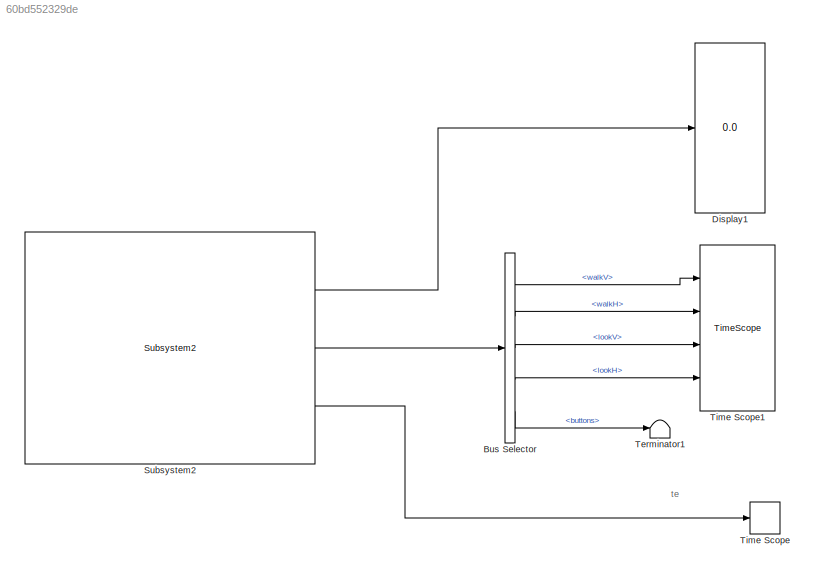
MODEL slx_60bd552329de
KIND model
BLOCK [BusSelector] Bus Selector
  OutputSignals = walkV,walkH,lookV,lookH,buttons
  Ports = [1, 5]
BLOCK [Display] Display1
  Decimation = 1
  Ports = [1]
BLOCK [Reference] Subsystem2  REF=BeagleBoneBlackCom/Subsystem2
  Ports = [0, 3]
  SourceBlock = BeagleBoneBlackCom/Subsystem2
  portNbr = Uart 2
BLOCK [Terminator] Terminator1
BLOCK [TimeScope] Time Scope
  DefaultConfigurationName = spbscopes.TimeScopeBlockCfg
  NumInputPorts = 1
  Ports = [1]
  ScopeSpecificationString = spbscopes.TimeScopeBlockCfg('CurrentConfiguration', extmgr.ConfigurationSet(extmgr.Configuration('Core','General UI',true),extmgr.Configuration('Core','Source UI',true),extmgr.Configuration('Sources','WiredSimulink',true,'DataLoggingVariableName','ScopeData2'),extmgr.Configuration('Visuals','Time Domain',true,'DisplayPropertyDefaults',struct('MinYLimReal','-1','MaxYLimReal','9','YLabelReal','Ampli...<+1498ch>
  UserDataPersistent = on
BLOCK [TimeScope] Time Scope1
  DefaultConfigurationName = spbscopes.TimeScopeBlockCfg
  NumInputPorts = 4
  Ports = [4]
  ScopeSpecificationString = spbscopes.TimeScopeBlockCfg('CurrentConfiguration', extmgr.ConfigurationSet(extmgr.Configuration('Core','General UI',true),extmgr.Configuration('Core','Source UI',true),extmgr.Configuration('Sources','WiredSimulink',true),extmgr.Configuration('Visuals','Time Domain',true,'DisplayLayoutDimensions',[4 1],'DisplayPropertyDefaults',struct('YLabelReal','Amplitude','AxesColor',[0 0 0],'AxesTickColor',[0...<+3462ch>
  UserDataPersistent = on
ANNOTATION (root): te
LINE Bus Selector:1 -> Time Scope1:1
LINE Bus Selector:2 -> Time Scope1:2
LINE Bus Selector:3 -> Time Scope1:3
LINE Bus Selector:4 -> Time Scope1:4
LINE Bus Selector:5 -> Terminator1:1
LINE Subsystem2:1 -> Display1:1
LINE Subsystem2:2 -> Bus Selector:1
LINE Subsystem2:3 -> Time Scope:1
